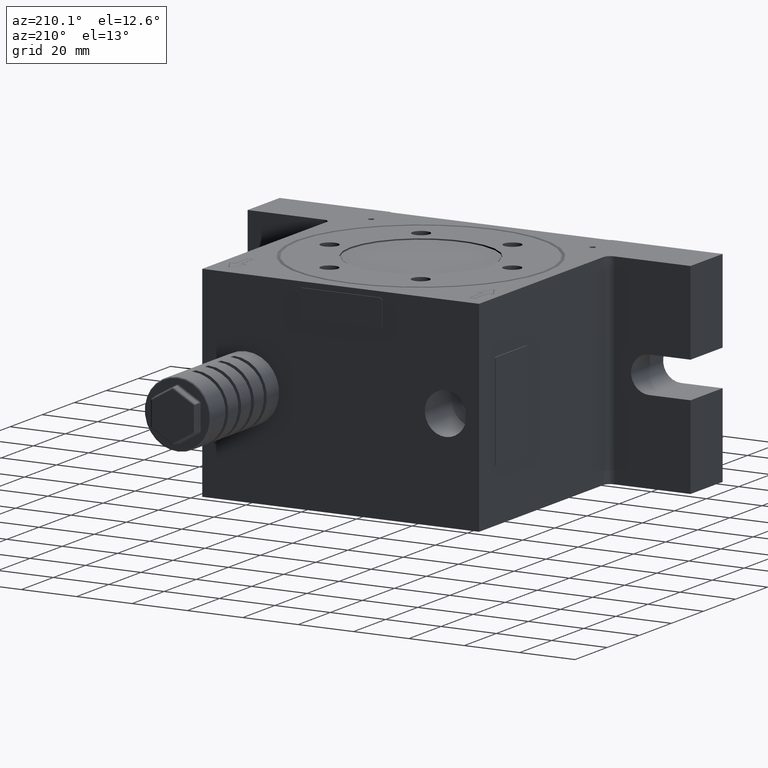
[diagram: clean part render]
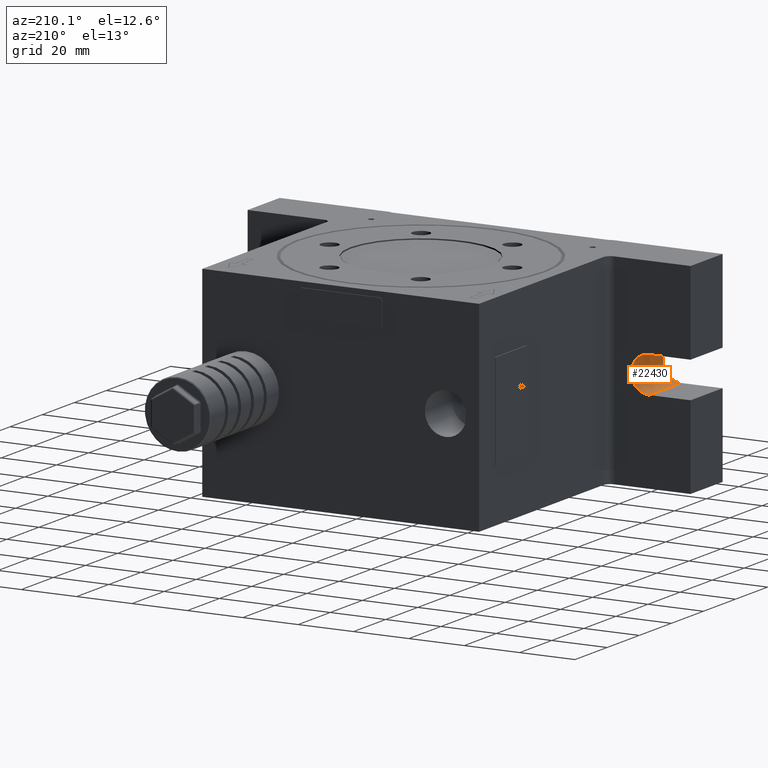
[diagram: same view with one face highlighted and labeled with its STEP entity id]
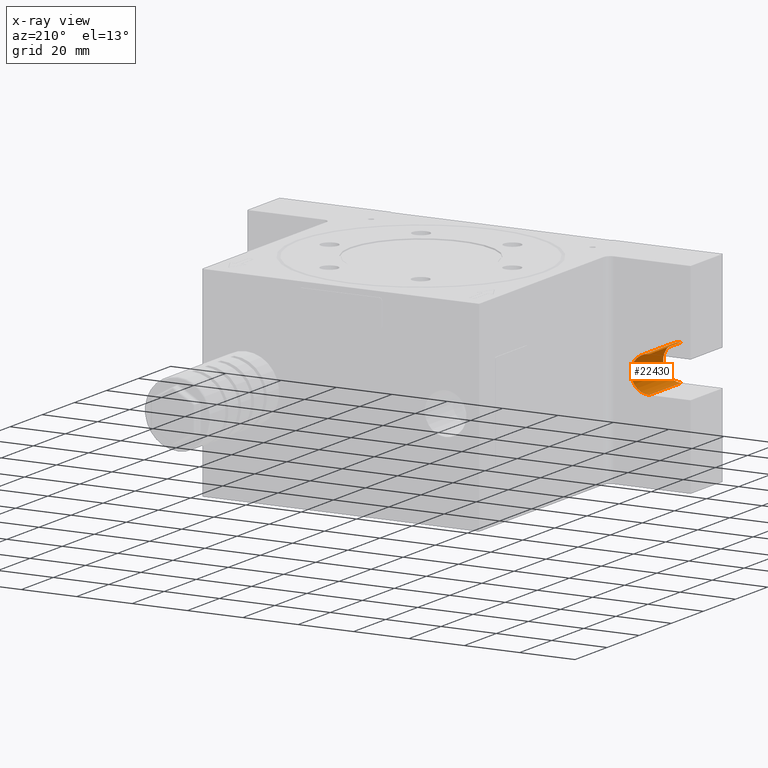
[diagram: x-ray of the same camera — body ghosted, the highlighted face saturated]
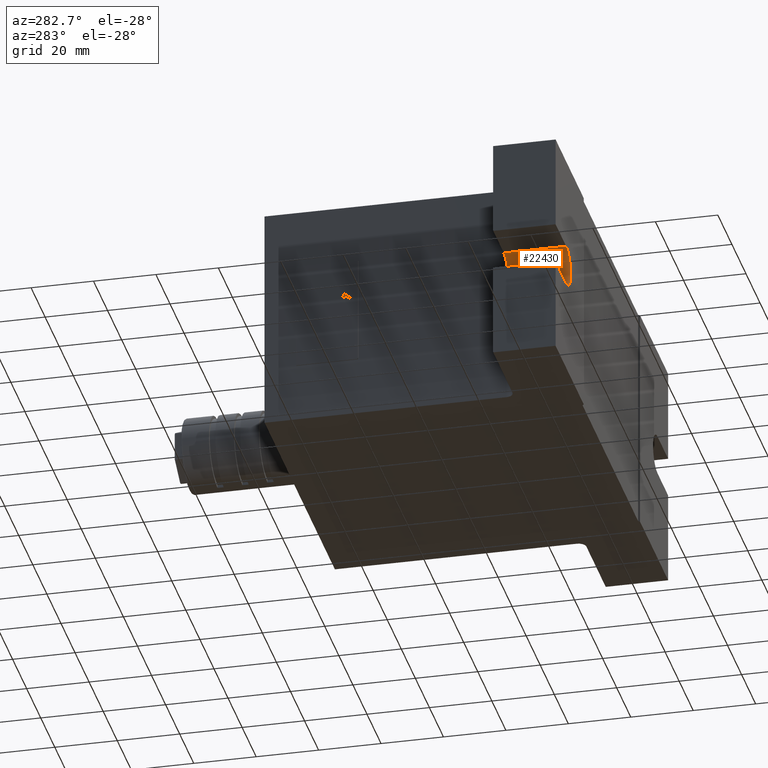
[diagram: same view with one face highlighted and labeled with its STEP entity id]
A machine part, auxiliary view. The second image highlights one B-rep face of the part: STEP entity #22430.
The next image is the same camera in x-ray: the body ghosted, the highlighted face saturated — about 0% of this face is hidden behind the body in this view.
A second angle (auxiliary view) of the same face is appended — the face is thin or edge-on in the first view.
In plain terms, the highlighted cylindrical surface (edge-blend (fillet) strip) has radius 6.5 mm, axis along (0, 1, 0).
Its self-contained STEP definition (entity closure, byte-faithful):
#213 = ORIENTED_EDGE ( 'NONE', *, *, #8430, .F. ) ;
#349 = DIRECTION ( 'NONE',  ( 0.0000000000000000000, 1.000000000000000000, 8.801438384760299300E-031 ) ) ;
#1017 = DIRECTION ( 'NONE',  ( 0.0000000000000000000, 1.000000000000000000, 8.801438384760299300E-031 ) ) ;
#1033 = VERTEX_POINT ( 'NONE', #20239 ) ;
#1034 = VECTOR ( 'NONE', #349, 1000.000000000000000 ) ;
#1271 = CARTESIAN_POINT ( 'NONE',  ( -65.00000000000000000, -30.00000000000000000, -6.499999999999989300 ) ) ;
#1764 = EDGE_CURVE ( 'NONE', #24546, #17567, #19829, .T. ) ;
#1774 = DIRECTION ( 'NONE',  ( 0.0000000000000000000, 1.000000000000000000, 8.801438384760299300E-031 ) ) ;
#4364 = VECTOR ( 'NONE', #1017, 1000.000000000000000 ) ;
#5431 = DIRECTION ( 'NONE',  ( 0.0000000000000000000, 0.0000000000000000000, 1.000000000000000000 ) ) ;
#5856 = EDGE_LOOP ( 'NONE', ( #10432, #24521, #213, #15344 ) ) ;
#8106 = DIRECTION ( 'NONE',  ( 0.0000000000000000000, 1.000000000000000000, 8.801438384760299300E-031 ) ) ;
#8334 = FACE_OUTER_BOUND ( 'NONE', #5856, .T. ) ;
#8430 = EDGE_CURVE ( 'NONE', #24546, #1033, #17266, .T. ) ;
#9081 = DIRECTION ( 'NONE',  ( 0.0000000000000000000, 1.000000000000000000, 8.801438384760299300E-031 ) ) ;
#9361 = CYLINDRICAL_SURFACE ( 'NONE', #18844, 6.500000000000000000 ) ;
#9938 = DIRECTION ( 'NONE',  ( 0.0000000000000000000, 0.0000000000000000000, -1.000000000000000000 ) ) ;
#10432 = ORIENTED_EDGE ( 'NONE', *, *, #18980, .T. ) ;
#11433 = CARTESIAN_POINT ( 'NONE',  ( -65.00000000000000000, -50.00000000000000000, -6.499999999999989300 ) ) ;
#11879 = AXIS2_PLACEMENT_3D ( 'NONE', #21333, #8106, #9938 ) ;
#12477 = CARTESIAN_POINT ( 'NONE',  ( -65.00000000000000000, -30.00000000000000000, 6.500000000000009800 ) ) ;
#13112 = CARTESIAN_POINT ( 'NONE',  ( -65.00000000000000000, -50.00000000000000000, -4.592273826834067800E-015 ) ) ;
#13234 = VERTEX_POINT ( 'NONE', #1271 ) ;
#13515 = CIRCLE ( 'NONE', #24052, 6.500000000000000000 ) ;
#13845 = LINE ( 'NONE', #11433, #1034 ) ;
#15344 = ORIENTED_EDGE ( 'NONE', *, *, #1764, .T. ) ;
#16882 = CARTESIAN_POINT ( 'NONE',  ( -65.00000000000000000, -50.00000000000000000, 6.500000000000009800 ) ) ;
#17266 = CIRCLE ( 'NONE', #11879, 6.500000000000000000 ) ;
#17567 = VERTEX_POINT ( 'NONE', #12477 ) ;
#18137 = CARTESIAN_POINT ( 'NONE',  ( -65.00000000000000000, -50.00000000000000000, 6.500000000000009800 ) ) ;
#18206 = CARTESIAN_POINT ( 'NONE',  ( -65.00000000000000000, -30.00000000000000000, -4.592273826834065400E-015 ) ) ;
#18844 = AXIS2_PLACEMENT_3D ( 'NONE', #13112, #1774, #5431 ) ;
#18980 = EDGE_CURVE ( 'NONE', #17567, #13234, #13515, .T. ) ;
#19829 = LINE ( 'NONE', #18137, #4364 ) ;
#20239 = CARTESIAN_POINT ( 'NONE',  ( -65.00000000000000000, -50.00000000000000000, -6.499999999999989300 ) ) ;
#20299 = DIRECTION ( 'NONE',  ( 0.0000000000000000000, 0.0000000000000000000, -1.000000000000000000 ) ) ;
#21333 = CARTESIAN_POINT ( 'NONE',  ( -65.00000000000000000, -50.00000000000000000, -4.592273826834067800E-015 ) ) ;
#22430 = ADVANCED_FACE ( 'NONE', ( #8334 ), #9361, .F. ) ;
#22575 = EDGE_CURVE ( 'NONE', #1033, #13234, #13845, .T. ) ;
#24052 = AXIS2_PLACEMENT_3D ( 'NONE', #18206, #9081, #20299 ) ;
#24521 = ORIENTED_EDGE ( 'NONE', *, *, #22575, .F. ) ;
#24546 = VERTEX_POINT ( 'NONE', #16882 ) ;